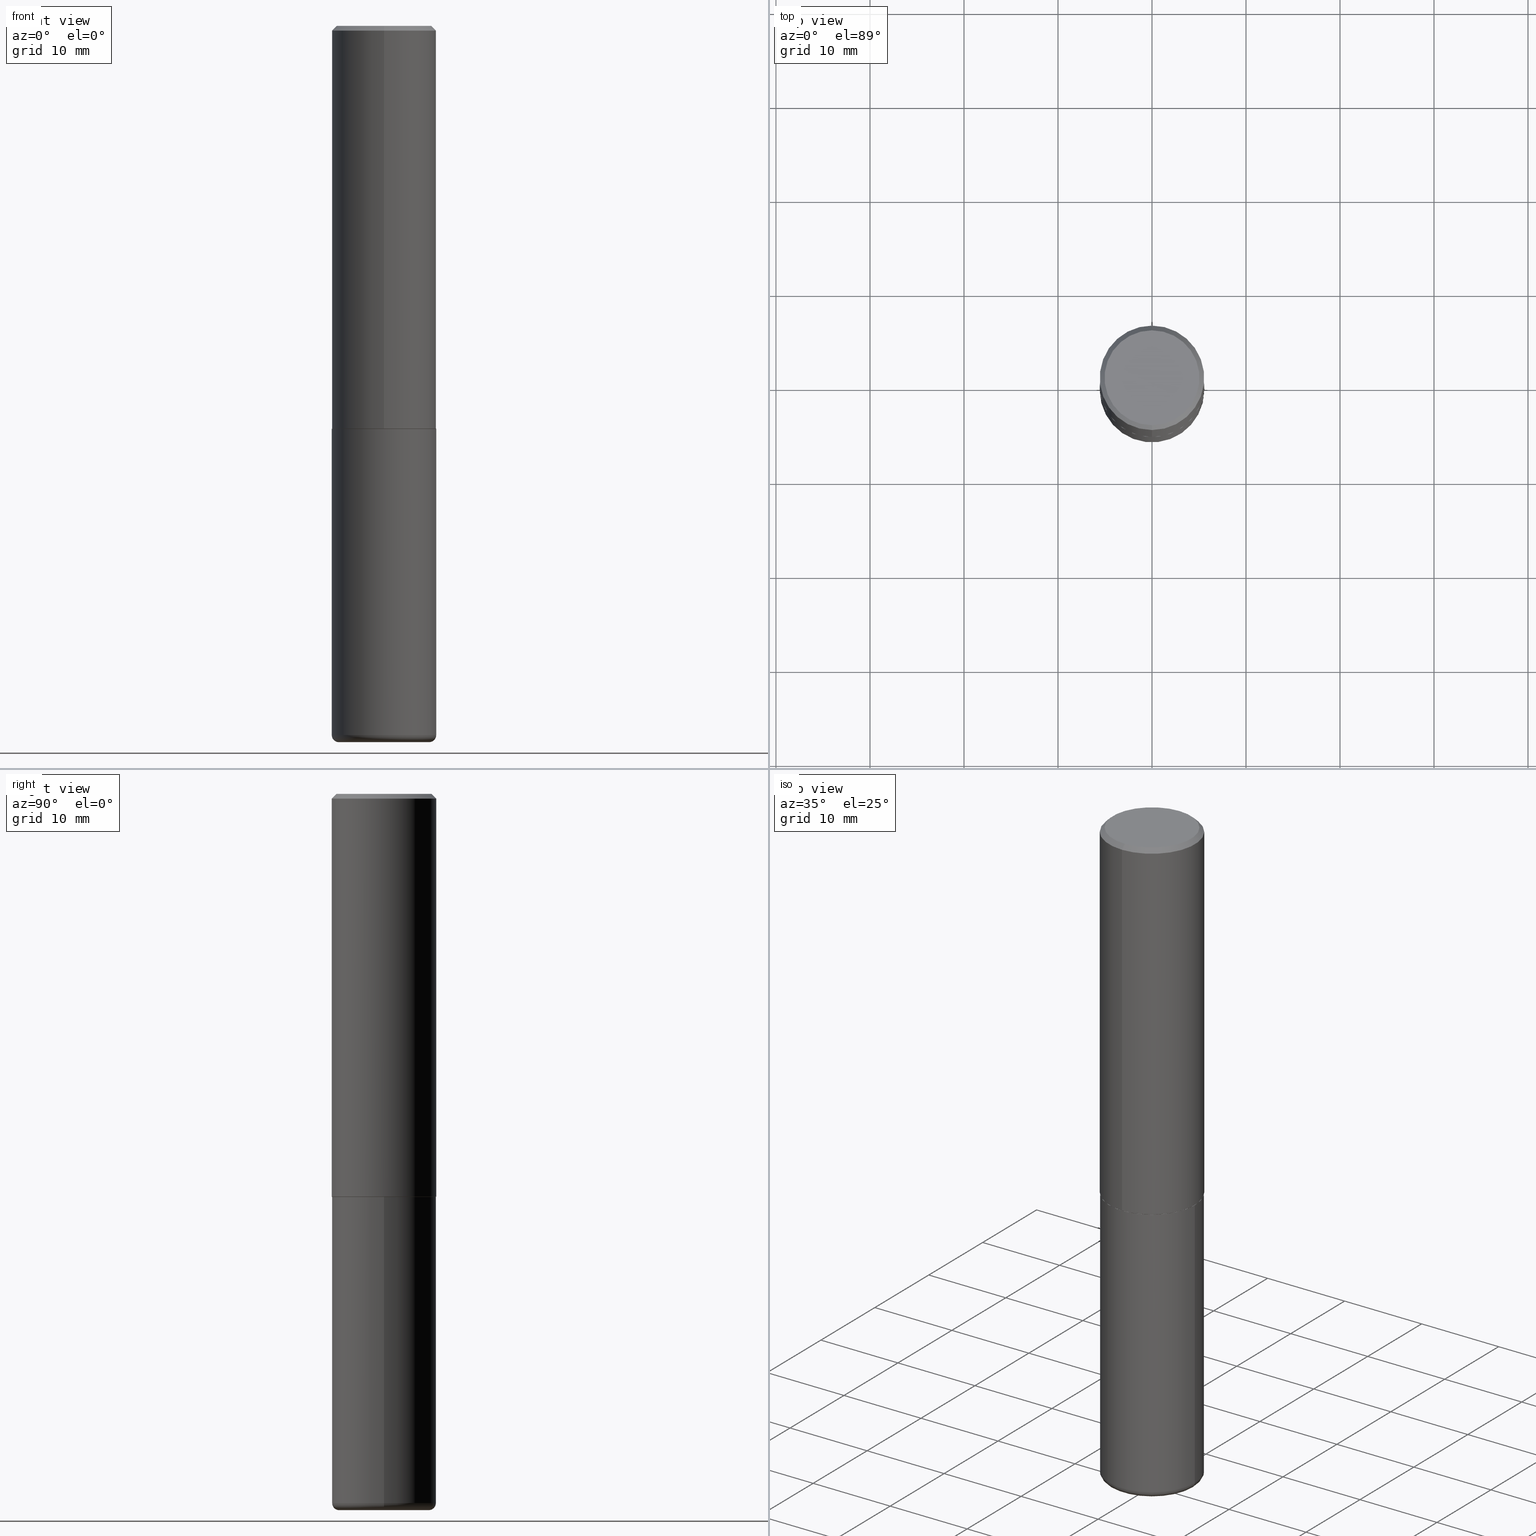
[diagram: canonical four-view strip — front | top / right | iso, engineering-drawing reading convention]
A machine part, canonical four-view strip (front | top / right | iso — engineering-drawing reading convention). The complete STEP part file that produces these views, byte-faithful:
ISO-10303-21;
HEADER;
FILE_DESCRIPTION (( 'STEP AP203' ),
    '1' );
FILE_NAME ('37502.STEP',
    '2024-03-02T02:51:12',
    ( '' ),
    ( '' ),
    'SwSTEP 2.0',
    'SolidWorks 2023',
    '' );
FILE_SCHEMA (( 'CONFIG_CONTROL_DESIGN' ));
ENDSEC;

DATA;
#1 = FACE_OUTER_BOUND ( 'NONE', #235, .T. ) ;
#2 = CIRCLE ( 'NONE', #390, 0.2187500000000000278 ) ;
#3 = EDGE_CURVE ( 'NONE', #114, #200, #411, .T. ) ;
#4 = ORIENTED_EDGE ( 'NONE', *, *, #128, .T. ) ;
#5 = DIRECTION ( 'NONE',  ( -2.445468806185136597E-29, 3.491481338843145583E-15, 1.000000000000000000 ) ) ;
#6 = CYLINDRICAL_SURFACE ( 'NONE', #35, 0.2187500000000000278 ) ;
#7 = EDGE_LOOP ( 'NONE', ( #176, #112, #75, #333 ) ) ;
#8 = AXIS2_PLACEMENT_3D ( 'NONE', #125, #416, #67 ) ;
#9 = AXIS2_PLACEMENT_3D ( 'NONE', #130, #197, #32 ) ;
#10 = DIRECTION ( 'NONE',  ( -2.445054220858351343E-29, 3.492075048627833097E-15, 1.000000000000000000 ) ) ;
#11 = ORIENTED_EDGE ( 'NONE', *, *, #352, .T. ) ;
#12 = DATE_AND_TIME ( #274, #232 ) ;
#13 = ORIENTED_EDGE ( 'NONE', *, *, #248, .F. ) ;
#14 = PERSON_AND_ORGANIZATION ( #201, #58 ) ;
#15 = CARTESIAN_POINT ( 'NONE',  ( 1.550759520796460265E-15, 0.2177499999999940872, -1.687500000000001110 ) ) ;
#16 = CIRCLE ( 'NONE', #354, 0.2187499999999999445 ) ;
#17 = PERSON_AND_ORGANIZATION ( #201, #58 ) ;
#18 = ADVANCED_FACE ( 'NONE', ( #142 ), #153, .F. ) ;
#19 = CARTESIAN_POINT ( 'NONE',  ( 1.527523085743870843E-15, 0.2187499999999998890, -0.02000000000000081574 ) ) ;
#20 = EDGE_LOOP ( 'NONE', ( #406, #79 ) ) ;
#21 = AXIS2_PLACEMENT_3D ( 'NONE', #55, #123, #280 ) ;
#22 = CARTESIAN_POINT ( 'NONE',  ( -0.1887500000000000011, -8.974340972335584846E-15, -3.000000000000000888 ) ) ;
#23 = DIRECTION ( 'NONE',  ( -2.445468806185136597E-29, 3.491481338843145583E-15, 1.000000000000000000 ) ) ;
#24 = DIRECTION ( 'NONE',  ( 1.000000000000000000, -6.982962677686266711E-15, 4.876176775795935232E-29 ) ) ;
#25 = EDGE_CURVE ( 'NONE', #200, #243, #87, .T. ) ;
#26 = CARTESIAN_POINT ( 'NONE',  ( 7.336406418555412032E-29, -1.047444401652943951E-14, -3.000000000000000888 ) ) ;
#27 = ADVANCED_FACE ( 'NONE', ( #375 ), #314, .T. ) ;
#28 = APPROVAL_ROLE ( '' ) ;
#29 = DIRECTION ( 'NONE',  ( -2.445054220858351343E-29, 3.492075048627833097E-15, 1.000000000000000000 ) ) ;
#30 = DIRECTION ( 'NONE',  ( 1.000000000000000000, -6.982962677686267499E-15, 0.000000000000000000 ) ) ;
#31 = APPLICATION_CONTEXT ( 'configuration controlled 3d designs of mechanical parts and assemblies' ) ;
#32 = DIRECTION ( 'NONE',  ( 6.982962677686265922E-15, 1.000000000000000000, -3.492862791899308860E-15 ) ) ;
#33 = AXIS2_PLACEMENT_3D ( 'NONE', #319, #124, #92 ) ;
#34 = ORIENTED_EDGE ( 'NONE', *, *, #136, .T. ) ;
#35 = AXIS2_PLACEMENT_3D ( 'NONE', #268, #234, #39 ) ;
#36 = CARTESIAN_POINT ( 'NONE',  ( 0.2187500000000000000, -7.419397845041678890E-15, -1.687500000000000222 ) ) ;
#37 = EDGE_LOOP ( 'NONE', ( #204, #4 ) ) ;
#38 = CARTESIAN_POINT ( 'NONE',  ( 1.554312234475219551E-15, 0.2187500000000000833, -7.638914168873387857E-16 ) ) ;
#39 = DIRECTION ( 'NONE',  ( 1.000000000000000000, -6.982962677686266711E-15, 4.876176775795935232E-29 ) ) ;
#40 = EDGE_LOOP ( 'NONE', ( #331, #388, #217, #219 ) ) ;
#41 = EDGE_CURVE ( 'NONE', #364, #78, #266, .T. ) ;
#42 = AXIS2_PLACEMENT_3D ( 'NONE', #383, #59, #190 ) ;
#43 = APPROVAL_PERSON_ORGANIZATION ( #17, #181, #81 ) ;
#44 = APPROVAL_STATUS ( 'not_yet_approved' ) ;
#45 = VERTEX_POINT ( 'NONE', #187 ) ;
#46 = DIRECTION ( 'NONE',  ( 5.024295867788490741E-15, 0.7071067811866103003, 0.7071067811864847341 ) ) ;
#47 =( LENGTH_UNIT ( ) NAMED_UNIT ( * ) SI_UNIT ( $, .METRE. ) );
#48 = PLANE ( 'NONE',  #397 ) ;
#49 = AXIS2_PLACEMENT_3D ( 'NONE', #341, #247, #53 ) ;
#50 = DIRECTION ( 'NONE',  ( 2.438088387897960049E-29, -3.491481338843145188E-15, -1.000000000000000000 ) ) ;
#51 = PERSON_AND_ORGANIZATION ( #201, #58 ) ;
#52 = CC_DESIGN_PERSON_AND_ORGANIZATION_ASSIGNMENT ( #64, #60, ( #245 ) ) ;
#53 = DIRECTION ( 'NONE',  ( 1.000000000000000000, -6.982962677686271444E-15, 0.000000000000000000 ) ) ;
#54 = DATE_TIME_ROLE ( 'classification_date' ) ;
#55 = CARTESIAN_POINT ( 'NONE',  ( 7.263042354369856275E-29, -1.036969957636414298E-14, -2.970000000000000195 ) ) ;
#56 = VECTOR ( 'NONE', #278, 39.37007874015748143 ) ;
#57 = CALENDAR_DATE ( 2024, 1, 3 ) ;
#58 = ORGANIZATION ( 'UNSPECIFIED', 'UNSPECIFIED', '' ) ;
#59 = DIRECTION ( 'NONE',  ( 2.438088387897960049E-29, -3.491481338843145188E-15, -1.000000000000000000 ) ) ;
#60 = PERSON_AND_ORGANIZATION_ROLE ( 'classification_officer' ) ;
#61 = CARTESIAN_POINT ( 'NONE',  ( -0.2187500000000000000, -6.576474933355756753E-15, -1.687500000000000222 ) ) ;
#62 = EDGE_CURVE ( 'NONE', #78, #45, #395, .T. ) ;
#63 = DIRECTION ( 'NONE',  ( -6.982962677686265922E-15, -1.000000000000000000, 3.763740060157423393E-15 ) ) ;
#64 = PERSON_AND_ORGANIZATION ( #201, #58 ) ;
#65 = LOCAL_TIME ( 21, 51, 12.00000000000000000, #320 ) ;
#66 = CARTESIAN_POINT ( 'NONE',  ( 0.2187500000000001665, -1.189722266210801619E-14, -2.970000000000000195 ) ) ;
#67 = DIRECTION ( 'NONE',  ( -6.982962677686265133E-15, -1.000000000000000000, 3.492075048627833097E-15 ) ) ;
#68 = ADVANCED_FACE ( 'NONE', ( #307 ), #294, .T. ) ;
#69 = ORIENTED_EDGE ( 'NONE', *, *, #362, .T. ) ;
#70 = ADVANCED_FACE ( 'NONE', ( #244 ), #404, .T. ) ;
#71 = DIRECTION ( 'NONE',  ( 6.982962677686265922E-15, 1.000000000000000000, -3.492862791899308860E-15 ) ) ;
#72 = AXIS2_PLACEMENT_3D ( 'NONE', #296, #5, #392 ) ;
#73 = ORIENTED_EDGE ( 'NONE', *, *, #183, .T. ) ;
#74 = CARTESIAN_POINT ( 'NONE',  ( -1.527523085743871237E-15, -0.2187500000000000833, 7.638914168873387857E-16 ) ) ;
#75 = ORIENTED_EDGE ( 'NONE', *, *, #346, .F. ) ;
#76 = PRODUCT_DEFINITION_SHAPE ( 'NONE', 'NONE',  #329 ) ;
#77 = CARTESIAN_POINT ( 'NONE',  ( 4.126728610437418568E-29, -5.891874759297808836E-15, -1.687500000000000222 ) ) ;
#78 = VERTEX_POINT ( 'NONE', #15 ) ;
#79 = ORIENTED_EDGE ( 'NONE', *, *, #352, .F. ) ;
#80 = CIRCLE ( 'NONE', #154, 0.2187499999999999445 ) ;
#81 = APPROVAL_ROLE ( '' ) ;
#82 = EDGE_LOOP ( 'NONE', ( #139, #11, #73, #169 ) ) ;
#83 = PERSON_AND_ORGANIZATION_ROLE ( 'creator' ) ;
#84 = CARTESIAN_POINT ( 'NONE',  ( 1.387863832190145233E-15, 0.1987500000000000100, -7.196019909455309833E-16 ) ) ;
#85 =( CONVERSION_BASED_UNIT ( 'INCH', #394 ) LENGTH_UNIT ( ) NAMED_UNIT ( #356 ) );
#86 = CARTESIAN_POINT ( 'NONE',  ( 1.547206807117658972E-15, 0.2177499999999940872, -1.687500000000001110 ) ) ;
#87 = CIRCLE ( 'NONE', #49, 0.2187500000000000278 ) ;
#88 = CIRCLE ( 'NONE', #267, 0.2187500000000000000 ) ;
#89 = EDGE_CURVE ( 'NONE', #364, #206, #146, .T. ) ;
#90 = LINE ( 'NONE', #19, #160 ) ;
#91 = ORIENTED_EDGE ( 'NONE', *, *, #409, .F. ) ;
#92 = DIRECTION ( 'NONE',  ( -6.982962677686265922E-15, -1.000000000000000000, 3.492075048627833097E-15 ) ) ;
#93 = AXIS2_PLACEMENT_3D ( 'NONE', #381, #223, #127 ) ;
#94 = CC_DESIGN_APPROVAL ( #340, ( #329 ) ) ;
#95 = DIRECTION ( 'NONE',  ( -6.982962677686265922E-15, -1.000000000000000000, 3.492862791899308860E-15 ) ) ;
#96 = UNCERTAINTY_MEASURE_WITH_UNIT (LENGTH_MEASURE( 1.000000000000000082E-05 ), #85, 'distance_accuracy_value', 'NONE');
#97 = ADVANCED_FACE ( 'NONE', ( #241 ), #48, .F. ) ;
#98 = EDGE_CURVE ( 'NONE', #283, #357, #90, .T. ) ;
#99 = DIRECTION ( 'NONE',  ( 1.000000000000000000, -6.982962677686271444E-15, 0.000000000000000000 ) ) ;
#100 = CARTESIAN_POINT ( 'NONE',  ( -1.527523085743831005E-15, -0.2187500000000061062, -1.686499999999999444 ) ) ;
#101 = CC_DESIGN_PERSON_AND_ORGANIZATION_ASSIGNMENT ( #182, #218, ( #203 ) ) ;
#102 = CONICAL_SURFACE ( 'NONE', #216, 0.2177499999999999991, 0.7853981633975336552 ) ;
#103 =( GEOMETRIC_REPRESENTATION_CONTEXT ( 3 ) GLOBAL_UNCERTAINTY_ASSIGNED_CONTEXT ( ( #96 ) ) GLOBAL_UNIT_ASSIGNED_CONTEXT ( ( #85, #272, #401 ) ) REPRESENTATION_CONTEXT ( 'NONE', 'WORKASPACE' ) );
#104 = DIRECTION ( 'NONE',  ( -2.445054220858351343E-29, 3.492075048627833097E-15, 1.000000000000000000 ) ) ;
#105 = FACE_OUTER_BOUND ( 'NONE', #40, .T. ) ;
#106 = EDGE_LOOP ( 'NONE', ( #230, #151, #69, #393 ) ) ;
#107 = CARTESIAN_POINT ( 'NONE',  ( 4.126728610437418568E-29, -5.891874759297808836E-15, -1.687500000000000222 ) ) ;
#108 = ORIENTED_EDGE ( 'NONE', *, *, #98, .F. ) ;
#109 = CONICAL_SURFACE ( 'NONE', #165, 0.2187499999999999445, 0.7853981633974472798 ) ;
#110 = ORIENTED_EDGE ( 'NONE', *, *, #300, .T. ) ;
#111 = EDGE_CURVE ( 'NONE', #283, #295, #193, .T. ) ;
#112 = ORIENTED_EDGE ( 'NONE', *, *, #62, .T. ) ;
#113 = APPLICATION_CONTEXT ( 'configuration controlled 3d designs of mechanical parts and assemblies' ) ;
#114 = VERTEX_POINT ( 'NONE', #22 ) ;
#115 = CARTESIAN_POINT ( 'NONE',  ( 0.000000000000000000, 0.000000000000000000, 0.000000000000000000 ) ) ;
#116 = CIRCLE ( 'NONE', #72, 0.1887500000000000011 ) ;
#117 = APPROVAL_PERSON_ORGANIZATION ( #286, #361, #28 ) ;
#118 = DIRECTION ( 'NONE',  ( 1.000000000000000000, -6.982962677686263555E-15, 4.883557194083111780E-29 ) ) ;
#119 = DIRECTION ( 'NONE',  ( -2.445054220858351343E-29, 3.492075048627833097E-15, 1.000000000000000000 ) ) ;
#120 = DIRECTION ( 'NONE',  ( -2.445054220858351343E-29, 3.492075048627833097E-15, 1.000000000000000000 ) ) ;
#121 = CLOSED_SHELL ( 'NONE', ( #222, #27, #18, #384, #68, #144 ) ) ;
#122 = CIRCLE ( 'NONE', #172, 0.2177499999999999991 ) ;
#123 = DIRECTION ( 'NONE',  ( -2.445468806185136597E-29, 3.491481338843145583E-15, 1.000000000000000000 ) ) ;
#124 = DIRECTION ( 'NONE',  ( -2.445054220858351343E-29, 3.492075048627833097E-15, 1.000000000000000000 ) ) ;
#125 = CARTESIAN_POINT ( 'NONE',  ( 1.249524178112448832E-45, -1.784595273110905928E-31, -5.110415006149825816E-17 ) ) ;
#126 = LINE ( 'NONE', #315, #252 ) ;
#127 = DIRECTION ( 'NONE',  ( 1.000000000000000000, -6.982962677686273021E-15, 0.000000000000000000 ) ) ;
#128 = EDGE_CURVE ( 'NONE', #295, #283, #373, .T. ) ;
#129 = AXIS2_PLACEMENT_3D ( 'NONE', #107, #205, #30 ) ;
#130 = CARTESIAN_POINT ( 'NONE',  ( 4.890108441716715262E-31, -6.984150097255683598E-17, -0.02000000000000005246 ) ) ;
#131 = ORIENTED_EDGE ( 'NONE', *, *, #25, .T. ) ;
#132 = EDGE_LOOP ( 'NONE', ( #367, #173, #262, #184 ) ) ;
#133 = CARTESIAN_POINT ( 'NONE',  ( 1.527523085743870843E-15, 0.2187499999999998890, -0.02000000000000081574 ) ) ;
#134 = CC_DESIGN_PERSON_AND_ORGANIZATION_ASSIGNMENT ( #14, #83, ( #329 ) ) ;
#135 = ORIENTED_EDGE ( 'NONE', *, *, #183, .F. ) ;
#136 = EDGE_CURVE ( 'NONE', #295, #171, #257, .T. ) ;
#137 = CARTESIAN_POINT ( 'NONE',  ( -1.520540123066143216E-15, -0.2177500000000058833, -1.687499999999999334 ) ) ;
#138 = CC_DESIGN_SECURITY_CLASSIFICATION ( #245, ( #387 ) ) ;
#139 = ORIENTED_EDGE ( 'NONE', *, *, #3, .F. ) ;
#140 = ORIENTED_EDGE ( 'NONE', *, *, #152, .T. ) ;
#141 = APPROVAL_STATUS ( 'not_yet_approved' ) ;
#142 = FACE_OUTER_BOUND ( 'NONE', #370, .T. ) ;
#143 = APPLICATION_PROTOCOL_DEFINITION ( 'international standard', 'config_control_design', 1994, #113 ) ;
#144 = ADVANCED_FACE ( 'NONE', ( #192 ), #345, .T. ) ;
#145 = AXIS2_PLACEMENT_3D ( 'NONE', #336, #120, #335 ) ;
#146 = LINE ( 'NONE', #211, #56 ) ;
#147 = AXIS2_PLACEMENT_3D ( 'NONE', #167, #303, #229 ) ;
#148 = CC_DESIGN_APPROVAL ( #361, ( #245 ) ) ;
#149 = COORDINATED_UNIVERSAL_TIME_OFFSET ( 5, 0, .BEHIND. ) ;
#150 = DIRECTION ( 'NONE',  ( 4.937700262164542520E-15, 0.7071067811865443531, -0.7071067811865506814 ) ) ;
#151 = ORIENTED_EDGE ( 'NONE', *, *, #242, .T. ) ;
#152 = EDGE_CURVE ( 'NONE', #171, #357, #16, .T. ) ;
#153 = PLANE ( 'NONE',  #265 ) ;
#154 = AXIS2_PLACEMENT_3D ( 'NONE', #258, #104, #251 ) ;
#155 = DIRECTION ( 'NONE',  ( -6.982962677686265922E-15, -1.000000000000000000, 3.746534391310985612E-15 ) ) ;
#156 = CC_DESIGN_PERSON_AND_ORGANIZATION_ASSIGNMENT ( #324, #408, ( #387 ) ) ;
#157 = CARTESIAN_POINT ( 'NONE',  ( 4.126028997698468907E-29, -5.892876644559468745E-15, -1.687500000000000222 ) ) ;
#158 = DATE_AND_TIME ( #57, #65 ) ;
#159 = CARTESIAN_POINT ( 'NONE',  ( 0.1887500000000000011, -1.179247822194272282E-14, -3.000000000000000888 ) ) ;
#160 = VECTOR ( 'NONE', #150, 39.37007874015748143 ) ;
#161 = DIRECTION ( 'NONE',  ( -2.445468806185136597E-29, 3.491481338843145583E-15, 1.000000000000000000 ) ) ;
#162 = CC_DESIGN_DATE_AND_TIME_ASSIGNMENT ( #12, #178, ( #329 ) ) ;
#163 = CARTESIAN_POINT ( 'NONE',  ( 1.457693458967008136E-15, 0.1987500000000000100, -7.451540659762801031E-16 ) ) ;
#164 = FACE_OUTER_BOUND ( 'NONE', #7, .T. ) ;
#165 = AXIS2_PLACEMENT_3D ( 'NONE', #270, #363, #71 ) ;
#166 = DIRECTION ( 'NONE',  ( -2.445468806185136877E-29, 3.491481338843145188E-15, 1.000000000000000000 ) ) ;
#167 = CARTESIAN_POINT ( 'NONE',  ( 4.123583943477609610E-29, -5.889384569510841777E-15, -1.686500000000000110 ) ) ;
#168 = ADVANCED_FACE ( 'NONE', ( #285 ), #291, .F. ) ;
#169 = ORIENTED_EDGE ( 'NONE', *, *, #25, .F. ) ;
#170 = DIRECTION ( 'NONE',  ( -2.445054220858351343E-29, 3.492075048627833097E-15, 1.000000000000000000 ) ) ;
#171 = VERTEX_POINT ( 'NONE', #221 ) ;
#172 = AXIS2_PLACEMENT_3D ( 'NONE', #410, #29, #321 ) ;
#173 = ORIENTED_EDGE ( 'NONE', *, *, #372, .T. ) ;
#174 = CC_DESIGN_DATE_AND_TIME_ASSIGNMENT ( #158, #54, ( #245 ) ) ;
#175 = DATE_AND_TIME ( #246, #323 ) ;
#176 = ORIENTED_EDGE ( 'NONE', *, *, #41, .T. ) ;
#177 = VERTEX_POINT ( 'NONE', #61 ) ;
#178 = DATE_TIME_ROLE ( 'creation_date' ) ;
#179 = CIRCLE ( 'NONE', #147, 0.2187500000000002220 ) ;
#180 = DIRECTION ( 'NONE',  ( -1.000000000000000000, 7.105427357600994759E-15, 0.000000000000000000 ) ) ;
#181 = APPROVAL ( #141, 'UNSPECIFIED' ) ;
#182 = PERSON_AND_ORGANIZATION ( #201, #58 ) ;
#183 = EDGE_CURVE ( 'NONE', #239, #243, #208, .T. ) ;
#184 = ORIENTED_EDGE ( 'NONE', *, *, #362, .F. ) ;
#185 = MECHANICAL_CONTEXT ( 'NONE', #113, 'mechanical' ) ;
#186 = DIRECTION ( 'NONE',  ( -2.445054220858351343E-29, 3.492075048627833097E-15, 1.000000000000000000 ) ) ;
#187 = CARTESIAN_POINT ( 'NONE',  ( 1.554312234475240653E-15, 0.2187499999999943101, -1.686500000000000998 ) ) ;
#188 = AXIS2_PLACEMENT_3D ( 'NONE', #279, #119, #292 ) ;
#189 = DATE_AND_TIME ( #250, #414 ) ;
#190 = DIRECTION ( 'NONE',  ( -1.000000000000000000, 6.982962677686265922E-15, -4.876176775795935793E-29 ) ) ;
#191 = CARTESIAN_POINT ( 'NONE',  ( 0.000000000000000000, 0.000000000000000000, 0.000000000000000000 ) ) ;
#192 = FACE_OUTER_BOUND ( 'NONE', #20, .T. ) ;
#193 = CIRCLE ( 'NONE', #188, 0.1987500000000000100 ) ;
#194 = CC_DESIGN_APPROVAL ( #181, ( #387 ) ) ;
#195 = DIRECTION ( 'NONE',  ( -2.445468806185136877E-29, 3.491481338843145188E-15, 1.000000000000000000 ) ) ;
#196 = CARTESIAN_POINT ( 'NONE',  ( -0.2187500000000000278, 1.554312234475219354E-15, -1.076017050993260762E-29 ) ) ;
#197 = DIRECTION ( 'NONE',  ( 2.445054220858351343E-29, -3.492075048627833097E-15, -1.000000000000000000 ) ) ;
#198 = VECTOR ( 'NONE', #46, 39.37007874015748143 ) ;
#199 = DIRECTION ( 'NONE',  ( 1.000000000000000000, -6.982962677686272233E-15, 0.000000000000000000 ) ) ;
#200 = VERTEX_POINT ( 'NONE', #418 ) ;
#201 = PERSON ( 'UNSPECIFIED', 'UNSPECIFIED', 'UNSPECIFIED', ('UNSPECIFIED'), ('UNSPECIFIED'), ('UNSPECIFIED') ) ;
#202 = LINE ( 'NONE', #38, #337 ) ;
#203 = PRODUCT ( '37502', '37502', '', ( #185 ) ) ;
#204 = ORIENTED_EDGE ( 'NONE', *, *, #111, .T. ) ;
#205 = DIRECTION ( 'NONE',  ( -2.445468806185136597E-29, 3.491481338843145583E-15, 1.000000000000000000 ) ) ;
#206 = VERTEX_POINT ( 'NONE', #100 ) ;
#207 = DIRECTION ( 'NONE',  ( 1.000000000000000000, -6.982962677686267499E-15, 0.000000000000000000 ) ) ;
#208 = CIRCLE ( 'NONE', #93, 0.03000000000000025910 ) ;
#209 = EDGE_LOOP ( 'NONE', ( #273, #366, #91, #299 ) ) ;
#210 = DIRECTION ( 'NONE',  ( -2.445468806185136597E-29, 3.491481338843145583E-15, 1.000000000000000000 ) ) ;
#211 = CARTESIAN_POINT ( 'NONE',  ( -1.520540123066143216E-15, -0.2177500000000058833, -1.687499999999999334 ) ) ;
#212 = PRODUCT_RELATED_PRODUCT_CATEGORY ( 'detail', '', ( #203 ) ) ;
#213 = ADVANCED_FACE ( 'NONE', ( #249 ), #224, .T. ) ;
#214 = APPROVAL_DATE_TIME ( #175, #340 ) ;
#215 = AXIS2_PLACEMENT_3D ( 'NONE', #342, #371, #180 ) ;
#216 = AXIS2_PLACEMENT_3D ( 'NONE', #157, #350, #63 ) ;
#217 = ORIENTED_EDGE ( 'NONE', *, *, #98, .T. ) ;
#218 = PERSON_AND_ORGANIZATION_ROLE ( 'design_owner' ) ;
#219 = ORIENTED_EDGE ( 'NONE', *, *, #287, .T. ) ;
#220 = CARTESIAN_POINT ( 'NONE',  ( 4.126728610437418568E-29, -5.891874759297808836E-15, -1.687500000000000222 ) ) ;
#221 = CARTESIAN_POINT ( 'NONE',  ( -1.500733937012521346E-15, -0.2187500000000000278, -0.01999999999999928571 ) ) ;
#222 = ADVANCED_FACE ( 'NONE', ( #325 ), #415, .T. ) ;
#223 = DIRECTION ( 'NONE',  ( -6.982962677686266711E-15, -1.000000000000000000, 3.491481338843145583E-15 ) ) ;
#224 = CYLINDRICAL_SURFACE ( 'NONE', #360, 0.2187500000000000833 ) ;
#225 = PERSON_AND_ORGANIZATION_ROLE ( 'creator' ) ;
#226 = DIRECTION ( 'NONE',  ( -2.445468806185136597E-29, 3.491481338843145583E-15, 1.000000000000000000 ) ) ;
#227 = VECTOR ( 'NONE', #407, 39.37007874015748143 ) ;
#228 = CARTESIAN_POINT ( 'NONE',  ( -1.432128957034806803E-15, -0.1987500000000000100, 6.429457658532835252E-16 ) ) ;
#229 = DIRECTION ( 'NONE',  ( -6.982962677686265922E-15, -1.000000000000000000, 3.746534391310985612E-15 ) ) ;
#230 = ORIENTED_EDGE ( 'NONE', *, *, #372, .F. ) ;
#231 = ORIENTED_EDGE ( 'NONE', *, *, #310, .T. ) ;
#232 = LOCAL_TIME ( 21, 51, 12.00000000000000000, #305 ) ;
#233 = EDGE_LOOP ( 'NONE', ( #365, #359, #339, #304 ) ) ;
#234 = DIRECTION ( 'NONE',  ( -2.445468806185136597E-29, 3.491481338843145583E-15, 1.000000000000000000 ) ) ;
#235 = EDGE_LOOP ( 'NONE', ( #328, #34, #140, #108 ) ) ;
#236 = DIRECTION ( 'NONE',  ( -2.445054220858351343E-29, 3.492075048627833097E-15, 1.000000000000000000 ) ) ;
#237 = EDGE_LOOP ( 'NONE', ( #269, #131, #391, #263 ) ) ;
#238 = VECTOR ( 'NONE', #166, 39.37007874015748143 ) ;
#239 = VERTEX_POINT ( 'NONE', #159 ) ;
#240 = CARTESIAN_POINT ( 'NONE',  ( 0.000000000000000000, 0.000000000000000000, 0.000000000000000000 ) ) ;
#241 = FACE_OUTER_BOUND ( 'NONE', #37, .T. ) ;
#242 = EDGE_CURVE ( 'NONE', #45, #206, #289, .T. ) ;
#243 = VERTEX_POINT ( 'NONE', #66 ) ;
#244 = FACE_OUTER_BOUND ( 'NONE', #106, .T. ) ;
#245 = SECURITY_CLASSIFICATION ( '', '', #351 ) ;
#246 = CALENDAR_DATE ( 2024, 1, 3 ) ;
#247 = DIRECTION ( 'NONE',  ( -2.445468806185136597E-29, 3.491481338843145583E-15, 1.000000000000000000 ) ) ;
#248 = EDGE_CURVE ( 'NONE', #78, #364, #122, .T. ) ;
#249 = FACE_OUTER_BOUND ( 'NONE', #132, .T. ) ;
#250 = CALENDAR_DATE ( 2024, 1, 3 ) ;
#251 = DIRECTION ( 'NONE',  ( -6.982962677686265922E-15, -1.000000000000000000, 3.492862791899308860E-15 ) ) ;
#252 = VECTOR ( 'NONE', #195, 39.37007874015748143 ) ;
#253 = APPROVAL_PERSON_ORGANIZATION ( #51, #340, #405 ) ;
#254 = FACE_OUTER_BOUND ( 'NONE', #233, .T. ) ;
#255 = EDGE_CURVE ( 'NONE', #243, #200, #2, .T. ) ;
#256 = CALENDAR_DATE ( 2024, 1, 3 ) ;
#257 = LINE ( 'NONE', #348, #227 ) ;
#258 = CARTESIAN_POINT ( 'NONE',  ( 4.890108441716715262E-31, -6.984150097255683598E-17, -0.02000000000000005246 ) ) ;
#259 = CIRCLE ( 'NONE', #129, 0.2187500000000000000 ) ;
#260 = EDGE_CURVE ( 'NONE', #243, #326, #126, .T. ) ;
#261 = LINE ( 'NONE', #196, #238 ) ;
#262 = ORIENTED_EDGE ( 'NONE', *, *, #152, .F. ) ;
#263 = ORIENTED_EDGE ( 'NONE', *, *, #310, .F. ) ;
#264 = ORIENTED_EDGE ( 'NONE', *, *, #41, .F. ) ;
#265 = AXIS2_PLACEMENT_3D ( 'NONE', #220, #50, #402 ) ;
#266 = CIRCLE ( 'NONE', #145, 0.2177499999999999991 ) ;
#267 = AXIS2_PLACEMENT_3D ( 'NONE', #77, #312, #207 ) ;
#268 = CARTESIAN_POINT ( 'NONE',  ( 0.000000000000000000, 0.000000000000000000, 0.000000000000000000 ) ) ;
#269 = ORIENTED_EDGE ( 'NONE', *, *, #317, .F. ) ;
#270 = CARTESIAN_POINT ( 'NONE',  ( 4.890108441716715262E-31, -6.984150097255683598E-17, -0.02000000000000005246 ) ) ;
#271 = ORIENTED_EDGE ( 'NONE', *, *, #3, .T. ) ;
#272 =( NAMED_UNIT ( * ) PLANE_ANGLE_UNIT ( ) SI_UNIT ( $, .RADIAN. ) );
#273 = ORIENTED_EDGE ( 'NONE', *, *, #255, .T. ) ;
#274 = CALENDAR_DATE ( 2024, 1, 3 ) ;
#275 = AXIS2_PLACEMENT_3D ( 'NONE', #313, #210, #118 ) ;
#276 = AXIS2_PLACEMENT_3D ( 'NONE', #240, #403, #281 ) ;
#277 = ADVANCED_FACE ( 'NONE', ( #254 ), #102, .T. ) ;
#278 = DIRECTION ( 'NONE',  ( -4.937700262164969294E-15, -0.7071067811866054154, 0.7071067811864896191 ) ) ;
#279 = CARTESIAN_POINT ( 'NONE',  ( 1.249524178112448832E-45, -1.784595273110905928E-31, -5.110415006149825816E-17 ) ) ;
#280 = DIRECTION ( 'NONE',  ( 1.000000000000000000, -6.982962677686263555E-15, 4.883557194083111780E-29 ) ) ;
#281 = DIRECTION ( 'NONE',  ( 1.000000000000000000, 0.000000000000000000, 0.000000000000000000 ) ) ;
#282 = AXIS2_PLACEMENT_3D ( 'NONE', #115, #186, #374 ) ;
#283 = VERTEX_POINT ( 'NONE', #163 ) ;
#284 = CARTESIAN_POINT ( 'NONE',  ( 7.263042354369856275E-29, -1.036969957636414298E-14, -2.970000000000000195 ) ) ;
#285 = FACE_OUTER_BOUND ( 'NONE', #389, .T. ) ;
#286 = PERSON_AND_ORGANIZATION ( #201, #58 ) ;
#287 = EDGE_CURVE ( 'NONE', #357, #171, #80, .T. ) ;
#288 = DIRECTION ( 'NONE',  ( -2.445054220858351343E-29, 3.492075048627833097E-15, 1.000000000000000000 ) ) ;
#289 = CIRCLE ( 'NONE', #301, 0.2187500000000002220 ) ;
#290 = DATE_AND_TIME ( #256, #302 ) ;
#291 = PLANE ( 'NONE',  #33 ) ;
#292 = DIRECTION ( 'NONE',  ( -6.982962677686265133E-15, -1.000000000000000000, 3.492075048627833097E-15 ) ) ;
#293 = CARTESIAN_POINT ( 'NONE',  ( 4.126028997698468907E-29, -5.892876644559468745E-15, -1.687500000000000222 ) ) ;
#294 = TOROIDAL_SURFACE ( 'NONE', #21, 0.1887500000000000011, 0.03000000000000025910 ) ;
#295 = VERTEX_POINT ( 'NONE', #228 ) ;
#296 = CARTESIAN_POINT ( 'NONE',  ( 7.336406418555412032E-29, -1.047444401652943951E-14, -3.000000000000000888 ) ) ;
#297 = ORIENTED_EDGE ( 'NONE', *, *, #409, .T. ) ;
#298 = FACE_OUTER_BOUND ( 'NONE', #237, .T. ) ;
#299 = ORIENTED_EDGE ( 'NONE', *, *, #260, .F. ) ;
#300 = EDGE_CURVE ( 'NONE', #239, #114, #344, .T. ) ;
#301 = AXIS2_PLACEMENT_3D ( 'NONE', #353, #288, #155 ) ;
#302 = LOCAL_TIME ( 21, 51, 12.00000000000000000, #149 ) ;
#303 = DIRECTION ( 'NONE',  ( -2.445054220858351343E-29, 3.492075048627833097E-15, 1.000000000000000000 ) ) ;
#304 = ORIENTED_EDGE ( 'NONE', *, *, #242, .F. ) ;
#305 = COORDINATED_UNIVERSAL_TIME_OFFSET ( 5, 0, .BEHIND. ) ;
#306 = ORIENTED_EDGE ( 'NONE', *, *, #255, .F. ) ;
#307 = FACE_OUTER_BOUND ( 'NONE', #82, .T. ) ;
#308 = VECTOR ( 'NONE', #236, 39.37007874015748143 ) ;
#309 = COORDINATED_UNIVERSAL_TIME_OFFSET ( 5, 0, .BEHIND. ) ;
#310 = EDGE_CURVE ( 'NONE', #177, #326, #259, .T. ) ;
#311 = DIRECTION ( 'NONE',  ( 6.982962677686265922E-15, 1.000000000000000000, -3.492075048627833097E-15 ) ) ;
#312 = DIRECTION ( 'NONE',  ( -2.445468806185136597E-29, 3.491481338843145583E-15, 1.000000000000000000 ) ) ;
#313 = CARTESIAN_POINT ( 'NONE',  ( 7.263042354369856275E-29, -1.036969957636414298E-14, -2.970000000000000195 ) ) ;
#314 = TOROIDAL_SURFACE ( 'NONE', #275, 0.1887500000000000011, 0.03000000000000025910 ) ;
#315 = CARTESIAN_POINT ( 'NONE',  ( 0.2187500000000000278, -1.527523085743871040E-15, 1.066663669705361025E-29 ) ) ;
#316 = CARTESIAN_POINT ( 'NONE',  ( 0.000000000000000000, 0.000000000000000000, 0.000000000000000000 ) ) ;
#317 = EDGE_CURVE ( 'NONE', #200, #177, #261, .T. ) ;
#318 = ADVANCED_FACE ( 'NONE', ( #105 ), #109, .T. ) ;
#319 = CARTESIAN_POINT ( 'NONE',  ( 4.126028997698468907E-29, -5.892876644559468745E-15, -1.687500000000000222 ) ) ;
#320 = COORDINATED_UNIVERSAL_TIME_OFFSET ( 5, 0, .BEHIND. ) ;
#321 = DIRECTION ( 'NONE',  ( -6.982962677686265922E-15, -1.000000000000000000, 3.763740060157423393E-15 ) ) ;
#322 = DESIGN_CONTEXT ( 'detailed design', #31, 'design' ) ;
#323 = LOCAL_TIME ( 21, 51, 12.00000000000000000, #309 ) ;
#324 = PERSON_AND_ORGANIZATION ( #201, #58 ) ;
#325 = FACE_OUTER_BOUND ( 'NONE', #209, .T. ) ;
#326 = VERTEX_POINT ( 'NONE', #36 ) ;
#327 = CONICAL_SURFACE ( 'NONE', #380, 0.2177499999999999991, 0.7853981633975336552 ) ;
#328 = ORIENTED_EDGE ( 'NONE', *, *, #128, .F. ) ;
#329 = PRODUCT_DEFINITION ( 'UNKNOWN', '', #387, #322 ) ;
#330 = LINE ( 'NONE', #74, #308 ) ;
#331 = ORIENTED_EDGE ( 'NONE', *, *, #136, .F. ) ;
#332 = EDGE_LOOP ( 'NONE', ( #110, #271, #306, #135 ) ) ;
#333 = ORIENTED_EDGE ( 'NONE', *, *, #89, .F. ) ;
#334 = CC_DESIGN_PERSON_AND_ORGANIZATION_ASSIGNMENT ( #343, #225, ( #387 ) ) ;
#335 = DIRECTION ( 'NONE',  ( -6.982962677686265922E-15, -1.000000000000000000, 3.763740060157423393E-15 ) ) ;
#336 = CARTESIAN_POINT ( 'NONE',  ( 4.126028997698468907E-29, -5.892876644559468745E-15, -1.687500000000000222 ) ) ;
#337 = VECTOR ( 'NONE', #170, 39.37007874015748143 ) ;
#338 = ADVANCED_BREP_SHAPE_REPRESENTATION ( '37502', ( #378, #369, #276 ), #103 ) ;
#339 = ORIENTED_EDGE ( 'NONE', *, *, #89, .T. ) ;
#340 = APPROVAL ( #44, 'UNSPECIFIED' ) ;
#341 = CARTESIAN_POINT ( 'NONE',  ( 7.263042354369856275E-29, -1.036969957636414298E-14, -2.970000000000000195 ) ) ;
#342 = CARTESIAN_POINT ( 'NONE',  ( -0.1887500000000000011, -9.028550162616954072E-15, -2.970000000000000195 ) ) ;
#343 = PERSON_AND_ORGANIZATION ( #201, #58 ) ;
#344 = CIRCLE ( 'NONE', #386, 0.1887500000000000011 ) ;
#345 = PLANE ( 'NONE',  #42 ) ;
#346 = EDGE_CURVE ( 'NONE', #206, #45, #179, .T. ) ;
#347 = APPROVAL_DATE_TIME ( #290, #181 ) ;
#348 = CARTESIAN_POINT ( 'NONE',  ( -1.500733937012521346E-15, -0.2187500000000000278, -0.01999999999999928571 ) ) ;
#349 = ADVANCED_FACE ( 'NONE', ( #164 ), #327, .T. ) ;
#350 = DIRECTION ( 'NONE',  ( -2.445054220858351343E-29, 3.492075048627833097E-15, 1.000000000000000000 ) ) ;
#351 = SECURITY_CLASSIFICATION_LEVEL ( 'unclassified' ) ;
#352 = EDGE_CURVE ( 'NONE', #114, #239, #116, .T. ) ;
#353 = CARTESIAN_POINT ( 'NONE',  ( 4.123583943477609610E-29, -5.889384569510841777E-15, -1.686500000000000110 ) ) ;
#354 = AXIS2_PLACEMENT_3D ( 'NONE', #385, #377, #95 ) ;
#355 = DIRECTION ( 'NONE',  ( -2.445054220858351343E-29, 3.492075048627833097E-15, 1.000000000000000000 ) ) ;
#356 = DIMENSIONAL_EXPONENTS ( 1.000000000000000000, 0.000000000000000000, 0.000000000000000000, 0.000000000000000000, 0.000000000000000000, 0.000000000000000000, 0.000000000000000000 ) ;
#357 = VERTEX_POINT ( 'NONE', #133 ) ;
#358 = DIRECTION ( 'NONE',  ( -6.982962677686265922E-15, -1.000000000000000000, 3.763740060157423393E-15 ) ) ;
#359 = ORIENTED_EDGE ( 'NONE', *, *, #248, .T. ) ;
#360 = AXIS2_PLACEMENT_3D ( 'NONE', #191, #355, #382 ) ;
#361 = APPROVAL ( #376, 'UNSPECIFIED' ) ;
#362 = EDGE_CURVE ( 'NONE', #206, #171, #330, .T. ) ;
#363 = DIRECTION ( 'NONE',  ( 2.445054220858351343E-29, -3.492075048627833097E-15, -1.000000000000000000 ) ) ;
#364 = VERTEX_POINT ( 'NONE', #137 ) ;
#365 = ORIENTED_EDGE ( 'NONE', *, *, #62, .F. ) ;
#366 = ORIENTED_EDGE ( 'NONE', *, *, #317, .T. ) ;
#367 = ORIENTED_EDGE ( 'NONE', *, *, #346, .T. ) ;
#368 = ADVANCED_FACE ( 'NONE', ( #1 ), #398, .T. ) ;
#369 = MANIFOLD_SOLID_BREP ( 'Body-Move/Copy2[2]', #396 ) ;
#370 = EDGE_LOOP ( 'NONE', ( #297, #231 ) ) ;
#371 = DIRECTION ( 'NONE',  ( 7.105427357601001859E-15, 1.000000000000000000, -3.491481338843145583E-15 ) ) ;
#372 = EDGE_CURVE ( 'NONE', #45, #357, #202, .T. ) ;
#373 = CIRCLE ( 'NONE', #8, 0.1987500000000000100 ) ;
#374 = DIRECTION ( 'NONE',  ( -6.982962677686265922E-15, -1.000000000000000000, 3.492075048627833097E-15 ) ) ;
#375 = FACE_OUTER_BOUND ( 'NONE', #332, .T. ) ;
#376 = APPROVAL_STATUS ( 'not_yet_approved' ) ;
#377 = DIRECTION ( 'NONE',  ( -2.445054220858351343E-29, 3.492075048627833097E-15, 1.000000000000000000 ) ) ;
#378 = MANIFOLD_SOLID_BREP ( 'Body-Move/Copy2[1]', #121 ) ;
#379 = SHAPE_DEFINITION_REPRESENTATION ( #76, #338 ) ;
#380 = AXIS2_PLACEMENT_3D ( 'NONE', #293, #10, #358 ) ;
#381 = CARTESIAN_POINT ( 'NONE',  ( 0.1887500000000000011, -1.168773378177742630E-14, -2.970000000000000195 ) ) ;
#382 = DIRECTION ( 'NONE',  ( -6.982962677686265922E-15, -1.000000000000000000, 3.492075048627833097E-15 ) ) ;
#383 = CARTESIAN_POINT ( 'NONE',  ( 1.272387584901478343E-29, -1.915846412883968437E-14, -3.000000000000000888 ) ) ;
#384 = ADVANCED_FACE ( 'NONE', ( #298 ), #6, .T. ) ;
#385 = CARTESIAN_POINT ( 'NONE',  ( 4.890108441716715262E-31, -6.984150097255683598E-17, -0.02000000000000005246 ) ) ;
#386 = AXIS2_PLACEMENT_3D ( 'NONE', #26, #161, #199 ) ;
#387 = PRODUCT_DEFINITION_FORMATION_WITH_SPECIFIED_SOURCE ( 'ANY', '', #203, .NOT_KNOWN. ) ;
#388 = ORIENTED_EDGE ( 'NONE', *, *, #111, .F. ) ;
#389 = EDGE_LOOP ( 'NONE', ( #264, #13 ) ) ;
#390 = AXIS2_PLACEMENT_3D ( 'NONE', #284, #23, #99 ) ;
#391 = ORIENTED_EDGE ( 'NONE', *, *, #260, .T. ) ;
#392 = DIRECTION ( 'NONE',  ( 1.000000000000000000, -6.982962677686272233E-15, 0.000000000000000000 ) ) ;
#393 = ORIENTED_EDGE ( 'NONE', *, *, #287, .F. ) ;
#394 = LENGTH_MEASURE_WITH_UNIT ( LENGTH_MEASURE( 0.02539999999999999897 ), #47 );
#395 = LINE ( 'NONE', #86, #198 ) ;
#396 = CLOSED_SHELL ( 'NONE', ( #349, #213, #368, #318, #70, #277, #168, #97 ) ) ;
#397 = AXIS2_PLACEMENT_3D ( 'NONE', #84, #400, #311 ) ;
#398 = CONICAL_SURFACE ( 'NONE', #9, 0.2187499999999999445, 0.7853981633974472798 ) ;
#399 = APPLICATION_PROTOCOL_DEFINITION ( 'international standard', 'config_control_design', 1994, #31 ) ;
#400 = DIRECTION ( 'NONE',  ( 2.445054220858351343E-29, -3.492075048627833097E-15, -1.000000000000000000 ) ) ;
#401 =( NAMED_UNIT ( * ) SI_UNIT ( $, .STERADIAN. ) SOLID_ANGLE_UNIT ( ) );
#402 = DIRECTION ( 'NONE',  ( -1.000000000000000000, 6.982962677686265922E-15, -4.876176775795935793E-29 ) ) ;
#403 = DIRECTION ( 'NONE',  ( 0.000000000000000000, 0.000000000000000000, 1.000000000000000000 ) ) ;
#404 = CYLINDRICAL_SURFACE ( 'NONE', #282, 0.2187500000000000833 ) ;
#405 = APPROVAL_ROLE ( '' ) ;
#406 = ORIENTED_EDGE ( 'NONE', *, *, #300, .F. ) ;
#407 = DIRECTION ( 'NONE',  ( -4.851104656540958753E-15, -0.7071067811865492381, -0.7071067811865457964 ) ) ;
#408 = PERSON_AND_ORGANIZATION_ROLE ( 'design_supplier' ) ;
#409 = EDGE_CURVE ( 'NONE', #326, #177, #88, .T. ) ;
#410 = CARTESIAN_POINT ( 'NONE',  ( 4.126028997698468907E-29, -5.892876644559468745E-15, -1.687500000000000222 ) ) ;
#411 = CIRCLE ( 'NONE', #215, 0.03000000000000025910 ) ;
#412 = COORDINATED_UNIVERSAL_TIME_OFFSET ( 5, 0, .BEHIND. ) ;
#413 = AXIS2_PLACEMENT_3D ( 'NONE', #316, #226, #24 ) ;
#414 = LOCAL_TIME ( 21, 51, 12.00000000000000000, #412 ) ;
#415 = CYLINDRICAL_SURFACE ( 'NONE', #413, 0.2187500000000000278 ) ;
#416 = DIRECTION ( 'NONE',  ( -2.445054220858351343E-29, 3.492075048627833097E-15, 1.000000000000000000 ) ) ;
#417 = APPROVAL_DATE_TIME ( #189, #361 ) ;
#418 = CARTESIAN_POINT ( 'NONE',  ( -0.2187500000000001665, -8.815387341888922250E-15, -2.970000000000000195 ) ) ;
ENDSEC;
END-ISO-10303-21;
